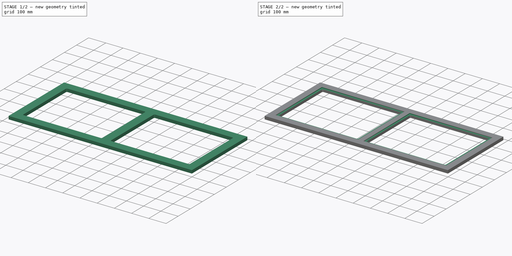
[diagram: build sequence overview — one tinted view per stage of 2, left to right]
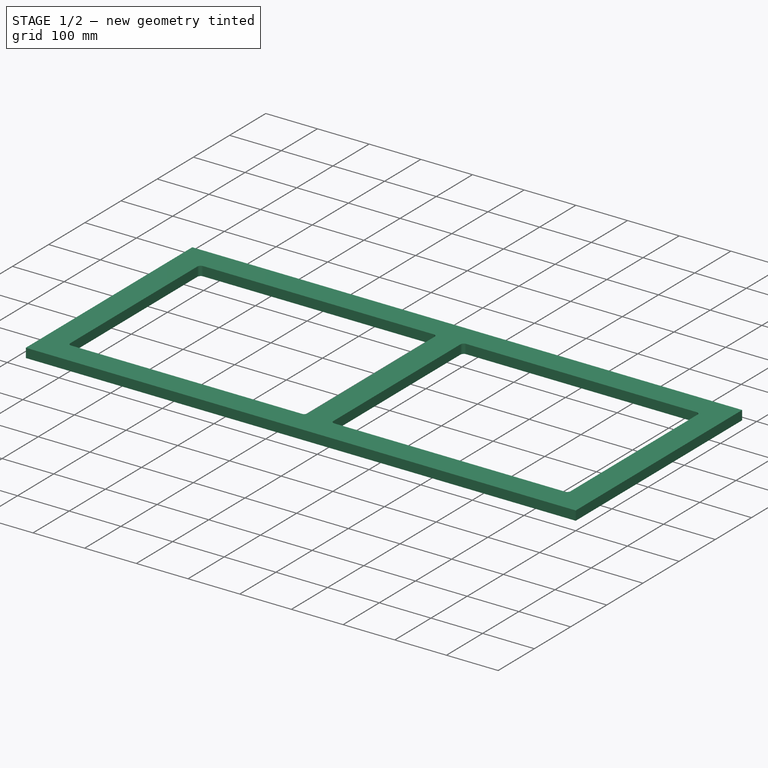
[diagram: stage 1 of 2 — iso view after this stage's code; geometry added in this stage tinted green]
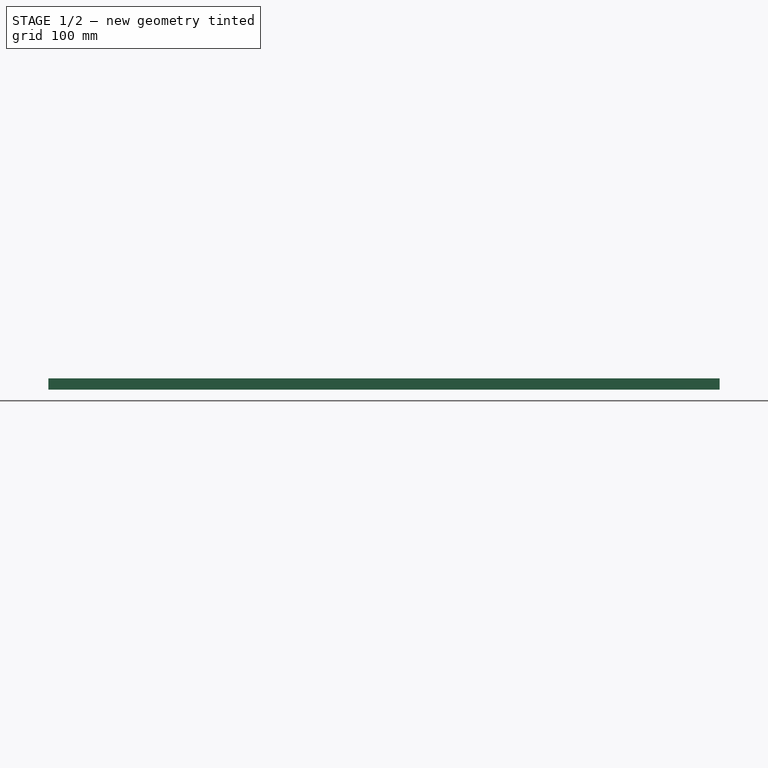
[diagram: stage 1 of 2 — front view after this stage's code; geometry added in this stage tinted green]
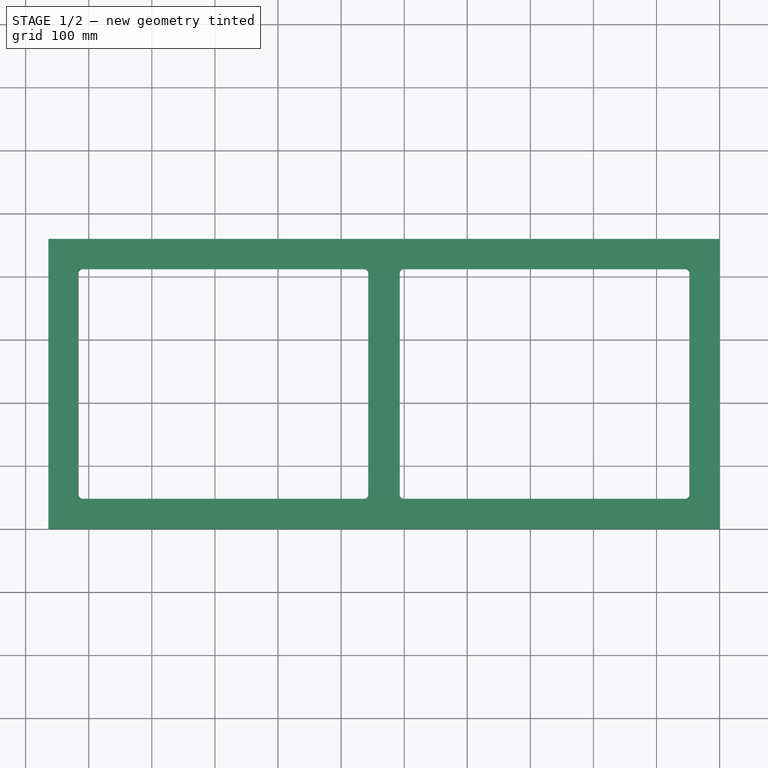
[diagram: stage 1 of 2 — top view after this stage's code; geometry added in this stage tinted green]
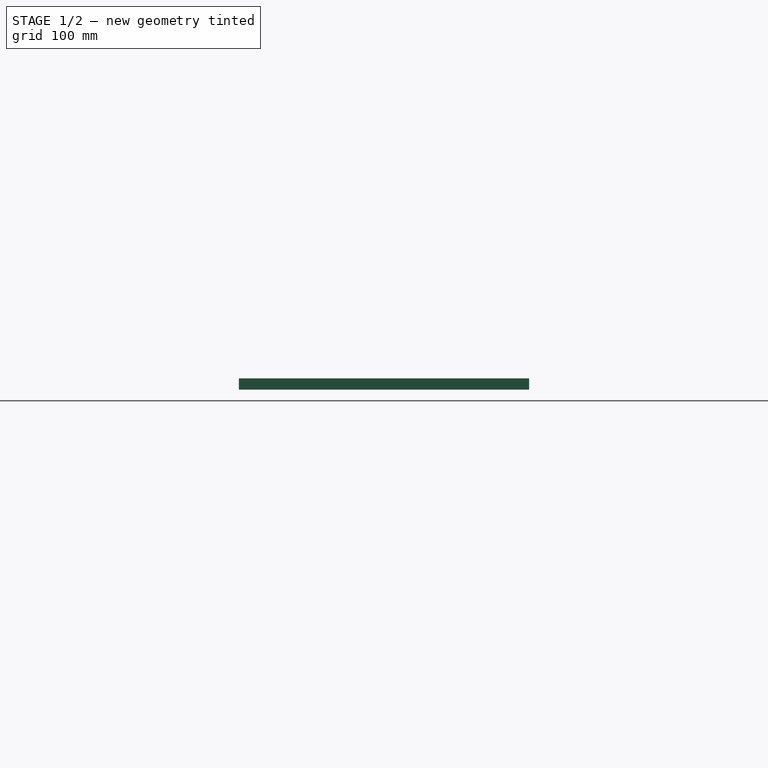
[diagram: stage 1 of 2 — right view after this stage's code; geometry added in this stage tinted green]
FCSTD DOCUMENT  (FreeCAD 0.18R4 (GitTag))
Label: door
License: All rights reserved
LicenseURL: http://en.wikipedia.org/wiki/All_rights_reserved
objects: Sketcher::SketchObject×3, PartDesign::Pocket×2, PartDesign::Pad×1, PartDesign::Body×1
note: 10 computed .brp shape members not serialized (recipe doc carries the construction recipe); baked Part::Feature solids carry a one-line shape summary decoded from their .brp

FEATURE [Sketcher::SketchObject] Sketch
  MapMode = 5
  Support = -> [XY_Plane]
  sketch-geometry (4):
    g0: LineSegment StartX=0 StartY=0 StartZ=0 EndX=-1064 EndY=0 EndZ=0
    g1: LineSegment StartX=-1064 StartY=0 StartZ=0 EndX=-1064 EndY=460 EndZ=0
    g2: LineSegment StartX=-1064 StartY=460 StartZ=0 EndX=0 EndY=460 EndZ=0
    g3: LineSegment StartX=0 StartY=460 StartZ=0 EndX=0 EndY=0 EndZ=0
  constraints (11):
    c: Coincident(g0,g1)
    c: Coincident(g1,g2)
    c: Coincident(g2,g3)
    c: Coincident(g3,g0)
    c: Horizontal(g0)
    c: Horizontal(g2)
    c: Vertical(g1)
    c: Vertical(g3)
    c: Coincident(g0,g-1)
    c: DistanceY(g3,g3) = 460
    c: DistanceX(g0,g0) = 1064
FEATURE [PartDesign::Pad] Pad
  Length = 18
  Length2 = 100
  Profile = -> Sketch
  Type = 0
FEATURE [Sketcher::SketchObject] Sketch004
  MapMode = 5
  Placement = pos=(0,0,0) rot=(1,0,0;3.14159rad)
  sketch-geometry (16):
    g0: LineSegment StartX=-54.35 StartY=-412 StartZ=0 EndX=-500.65 EndY=-412 EndZ=0
    g1: LineSegment StartX=-48 StartY=-405.65 StartZ=0 EndX=-48 EndY=-54.35 EndZ=0
    g2: LineSegment StartX=-54.35 StartY=-48 StartZ=0 EndX=-500.65 EndY=-48 EndZ=0
    g3: LineSegment StartX=-507 StartY=-54.35 StartZ=0 EndX=-507 EndY=-405.65 EndZ=0
    g4: ArcOfCircle CenterX=-500.65 CenterY=-54.35 CenterZ=0 NormalX=0 NormalY=0 NormalZ=1 AngleXU=0 Radius=6.35 StartAngle=1.5708 EndAngle=3.14159
    g5: ArcOfCircle CenterX=-500.65 CenterY=-405.65 CenterZ=0 NormalX=0 NormalY=0 NormalZ=1 AngleXU=0 Radius=6.35 StartAngle=3.14159 EndAngle=4.71239
    g6: ArcOfCircle CenterX=-54.35 CenterY=-405.65 CenterZ=0 NormalX=0 NormalY=0 NormalZ=1 AngleXU=0 Radius=6.35 StartAngle=4.71239 EndAngle=6.28319
    g7: ArcOfCircle CenterX=-54.35 CenterY=-54.35 CenterZ=0 NormalX=0 NormalY=0 NormalZ=1 AngleXU=0 Radius=6.35 StartAngle=7e-16 EndAngle=1.5708
    g8: LineSegment StartX=-557 StartY=-54.35 StartZ=0 EndX=-557 EndY=-405.65 EndZ=0
    g9: LineSegment StartX=-563.35 StartY=-412 StartZ=0 EndX=-1009.65 EndY=-412 EndZ=0
    g10: LineSegment StartX=-1016 StartY=-405.65 StartZ=0 EndX=-1016 EndY=-54.35 EndZ=0
    g11: LineSegment StartX=-1009.65 StartY=-48 StartZ=0 EndX=-563.35 EndY=-48 EndZ=0
    g12: ArcOfCircle CenterX=-563.35 CenterY=-54.35 CenterZ=0 NormalX=0 NormalY=0 NormalZ=1 AngleXU=0 Radius=6.35 StartAngle=3e-16 EndAngle=1.5708
    g13: ArcOfCircle CenterX=-1009.65 CenterY=-54.35 CenterZ=0 NormalX=0 NormalY=0 NormalZ=1 AngleXU=0 Radius=6.35 StartAngle=1.5708 EndAngle=3.14159
    g14: ArcOfCircle CenterX=-1009.65 CenterY=-405.65 CenterZ=0 NormalX=0 NormalY=0 NormalZ=1 AngleXU=0 Radius=6.35 StartAngle=3.14159 EndAngle=4.71239
    g15: ArcOfCircle CenterX=-563.35 CenterY=-405.65 CenterZ=0 NormalX=0 NormalY=0 NormalZ=1 AngleXU=0 Radius=6.35 StartAngle=4.71239 EndAngle=6.28319
  constraints (56):
    c: Coincident(g1,g7)
    c: Coincident(g7,g2)
    c: Coincident(g6,g0)
    c: Coincident(g1,g6)
    c: Coincident(g5,g0)
    c: Coincident(g5,g3)
    c: Coincident(g4,g3)
    c: Coincident(g2,g4)
    c: Horizontal(g2)
    c: Horizontal(g0)
    c: Vertical(g3)
    c: Vertical(g1)
    c: DistanceX(g1,g-1) = 48
    c: DistanceX(g0,g1) = 6.35
    c: DistanceY(g0,g1) = 6.35
    c: Radius(g6) = 6.35
    c: Radius(g7) = 6.35
    c: Radius(g4) = 6.35
    c: Radius(g5) = 6.35
    c: DistanceX(g2,g1) = 6.35
    c: DistanceY(g1,g2) = 6.35
    c: DistanceY(g3,g2) = 6.35
    c: DistanceX(g3,g2) = 6.35
    c: DistanceX(g3,g0) = 6.35
    c: DistanceY(g0,g3) = 6.35
    c: DistanceY(g2,g-1) = 48
    c: DistanceY(g0,g2) = 364
    c: DistanceX(g3,g1) = 459
    c: Coincident(g15,g8)
    c: Coincident(g15,g9)
    c: Coincident(g12,g8)
    c: Coincident(g11,g12)
    c: Coincident(g11,g13)
    c: Coincident(g13,g10)
    c: Coincident(g14,g9)
    c: Coincident(g14,g10)
    c: Horizontal(g11)
    c: Horizontal(g9)
    c: Vertical(g10)
    c: Vertical(g8)
    c: DistanceX(g10,g9) = 6.35
    c: DistanceX(g9,g8) = 6.35
    c: DistanceX(g11,g8) = 6.35
    c: DistanceY(g8,g11) = 6.35
    c: DistanceY(g9,g8) = 6.35
    c: DistanceY(g9,g10) = 6.35
    c: Radius(g14) = 6.35
    c: Radius(g15) = 6.35
    c: Radius(g12) = 6.35
    c: Radius(g13) = 6.35
    c: DistanceX(g10,g11) = 6.35
    c: DistanceY(g10,g11) = 6.35
    c: DistanceX(g8,g3) = 50
    c: DistanceY(g11,g-1) = 48
    c: DistanceX(g10,g8) = 459
    c: DistanceY(g0,g9) = 0
FEATURE [PartDesign::Pocket] Pocket003
  BaseFeature = -> Pad
  Length = 5
  Length2 = 100
  Profile = -> Sketch004
  Type = 1
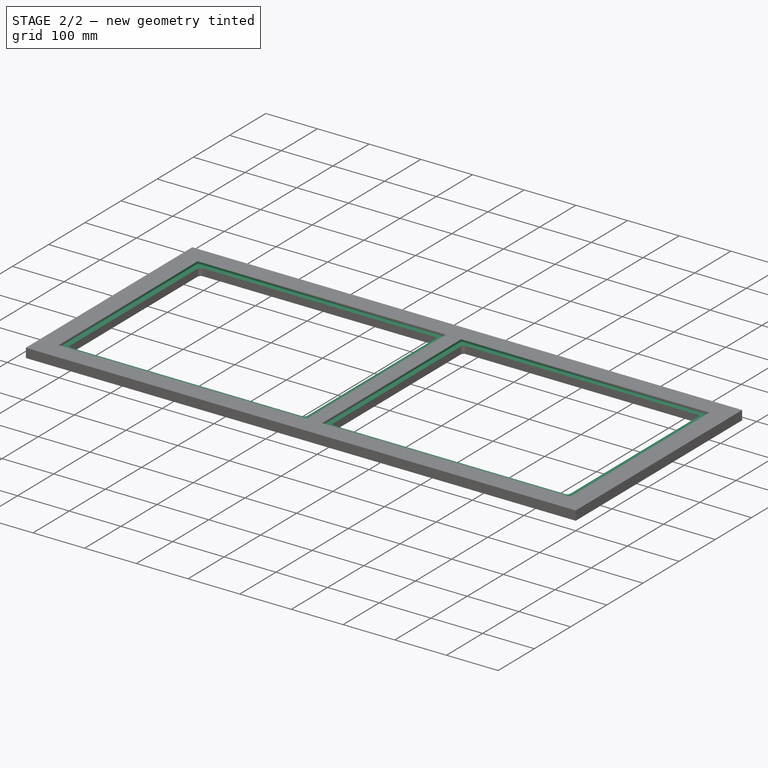
[diagram: stage 2 of 2 — iso view after this stage's code; geometry added in this stage tinted green]
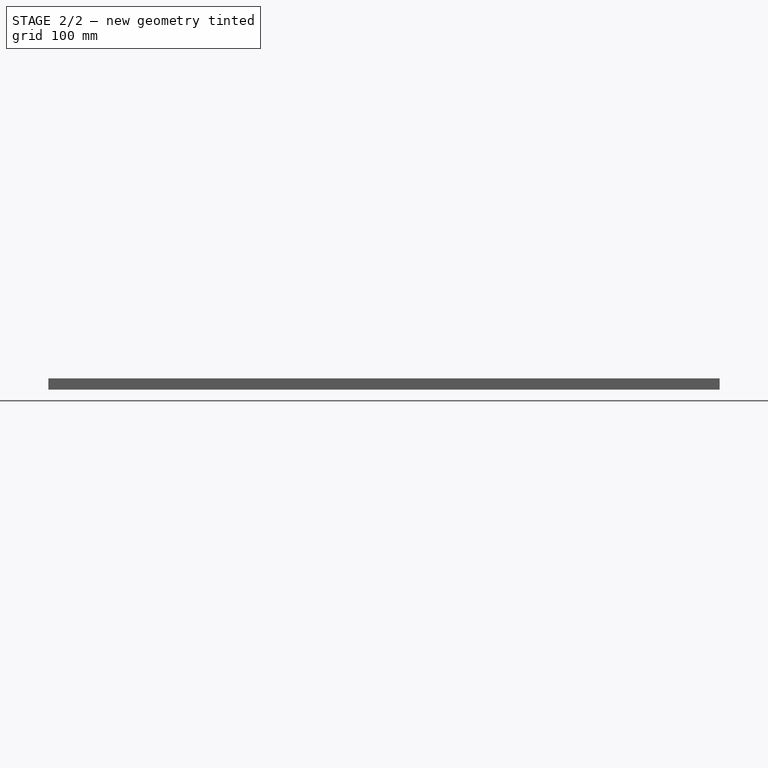
[diagram: stage 2 of 2 — front view after this stage's code; geometry added in this stage tinted green]
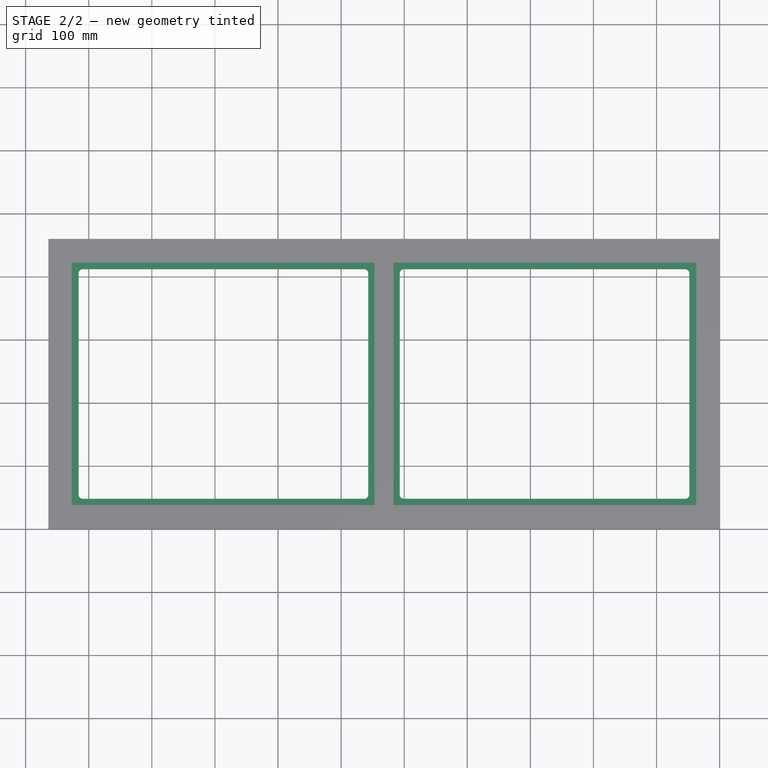
[diagram: stage 2 of 2 — top view after this stage's code; geometry added in this stage tinted green]
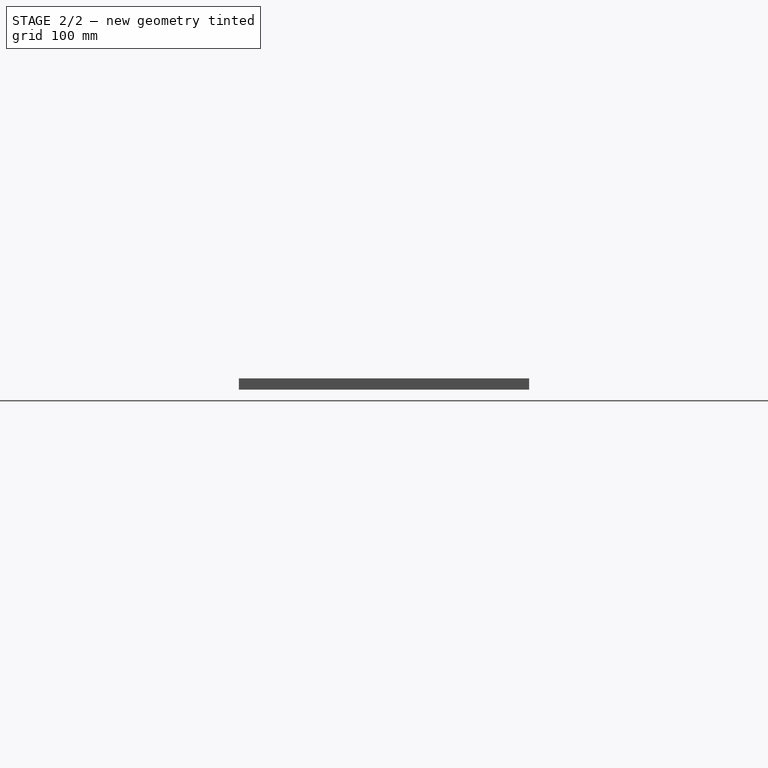
[diagram: stage 2 of 2 — right view after this stage's code; geometry added in this stage tinted green]
FEATURE [Sketcher::SketchObject] Sketch005
  MapMode = 5
  Placement = pos=(0,0,18) rot=(0,0,1;0rad)
  Support = -> [Pocket003]
  sketch-geometry (8):
    g0: LineSegment StartX=-37 StartY=38 StartZ=0 EndX=-517 EndY=38 EndZ=0
    g1: LineSegment StartX=-517 StartY=38 StartZ=0 EndX=-517 EndY=422 EndZ=0
    g2: LineSegment StartX=-517 StartY=422 StartZ=0 EndX=-37 EndY=422 EndZ=0
    g3: LineSegment StartX=-37 StartY=422 StartZ=0 EndX=-37 EndY=38 EndZ=0
    g4: LineSegment StartX=-547 StartY=38 StartZ=0 EndX=-1027 EndY=38 EndZ=0
    g5: LineSegment StartX=-1027 StartY=38 StartZ=0 EndX=-1027 EndY=422 EndZ=0
    g6: LineSegment StartX=-1027 StartY=422 StartZ=0 EndX=-547 EndY=422 EndZ=0
    g7: LineSegment StartX=-547 StartY=422 StartZ=0 EndX=-547 EndY=38 EndZ=0
  constraints (24):
    c: Coincident(g0,g1)
    c: Coincident(g1,g2)
    c: Coincident(g2,g3)
    c: Coincident(g3,g0)
    c: Horizontal(g0)
    c: Horizontal(g2)
    c: Vertical(g1)
    c: Vertical(g3)
    c: Coincident(g4,g5)
    c: Coincident(g5,g6)
    c: Coincident(g6,g7)
    c: Coincident(g7,g4)
    c: Horizontal(g4)
    c: Horizontal(g6)
    c: Vertical(g5)
    c: Vertical(g7)
    c: DistanceY(g-1,g0) = 38
    c: DistanceY(g3,g3) = 384
    c: DistanceX(g0,g-1) = 37
    c: DistanceX(g0,g0) = 480
    c: DistanceX(g4,g0) = 30
    c: DistanceX(g4,g4) = 480
    c: DistanceY(g6,g1) = 0
    c: DistanceY(g0,g4) = 0
FEATURE [PartDesign::Pocket] Pocket
  BaseFeature = -> Pocket003
  Length = 4
  Length2 = 100
  Profile = -> Sketch005
  Type = 0
FEATURE [PartDesign::Body] Body
  Group = -> [Sketch,Pad,Sketch004,Pocket003,Sketch005,Pocket]
  Origin = -> Origin
  Tip = -> Pocket
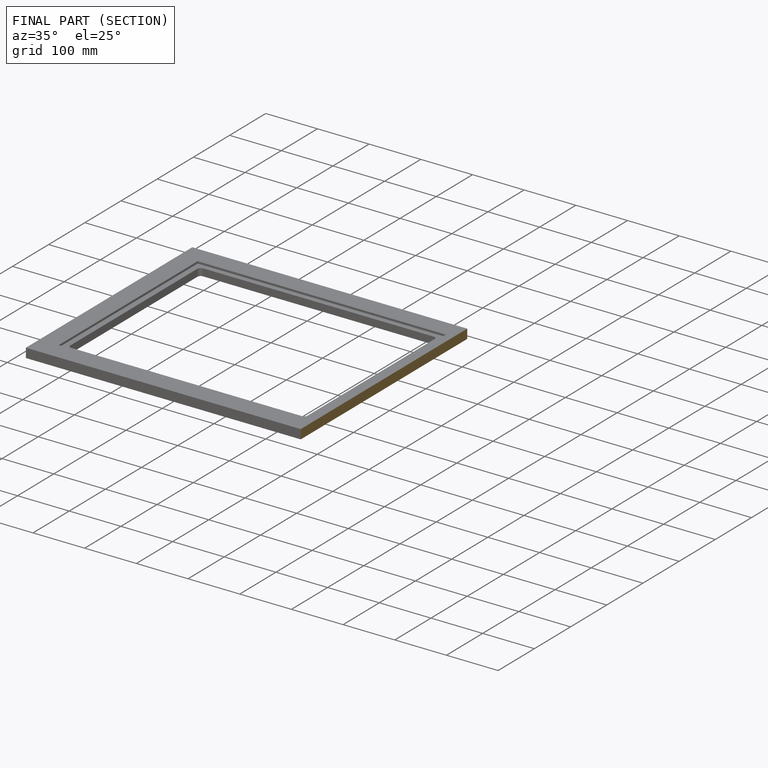
[diagram: finished part — half-section view (interior)]
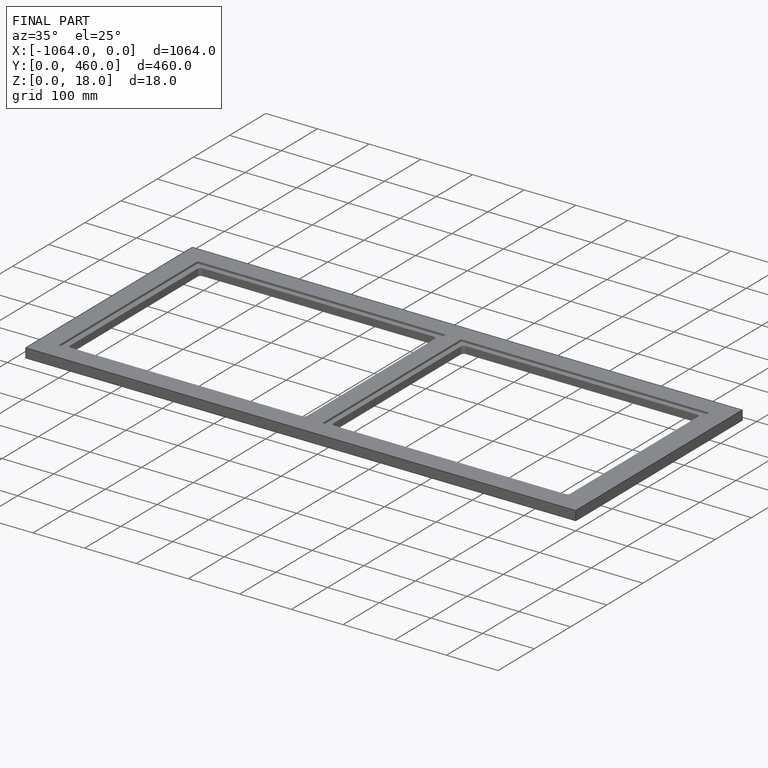
[diagram: finished part — iso view with bounding-box wireframe]
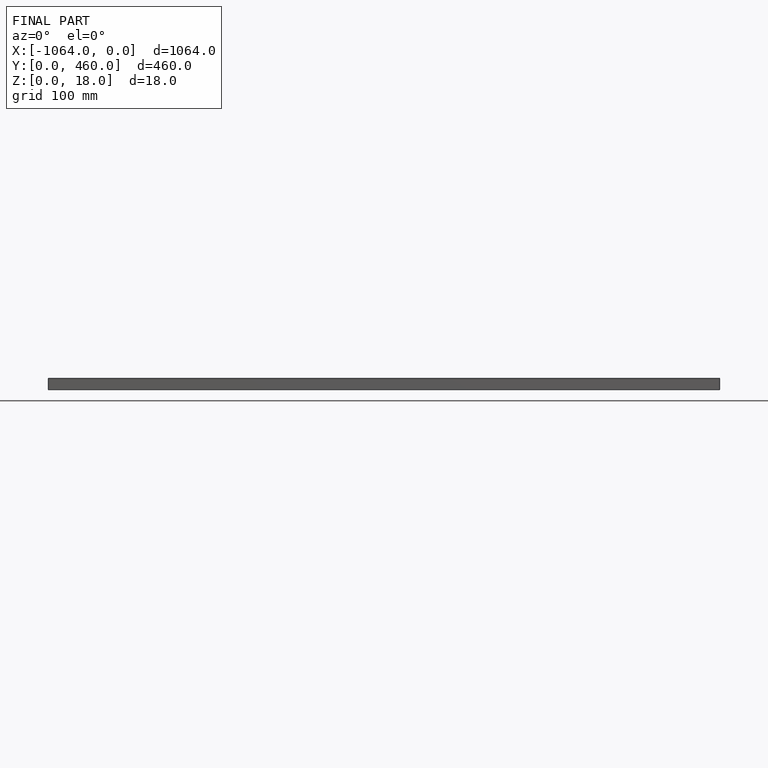
[diagram: finished part — front view with bounding-box wireframe]
